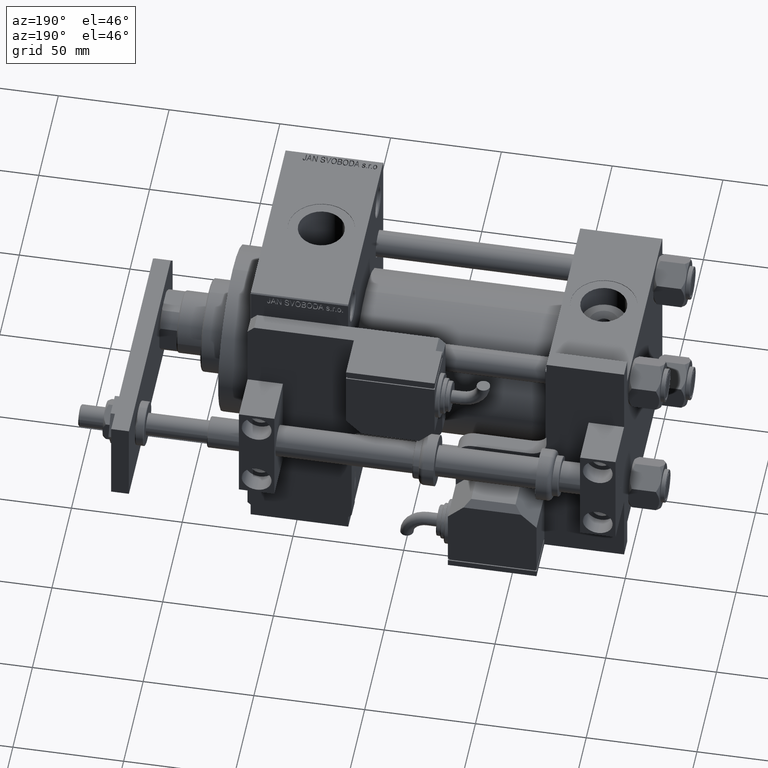
[diagram: clean part render]
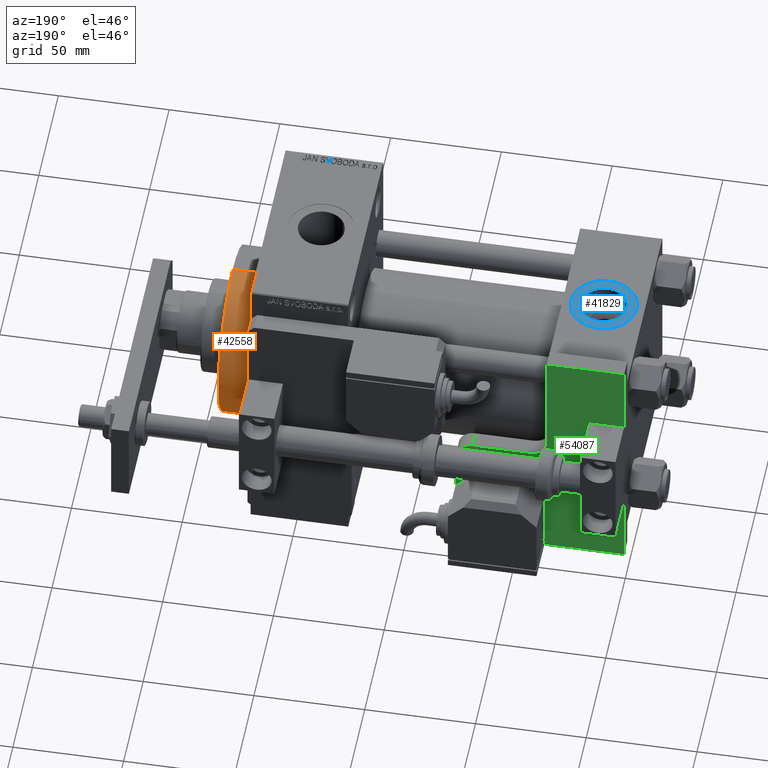
[diagram: same view with three faces highlighted in distinct colors, each labeled with its STEP entity id]
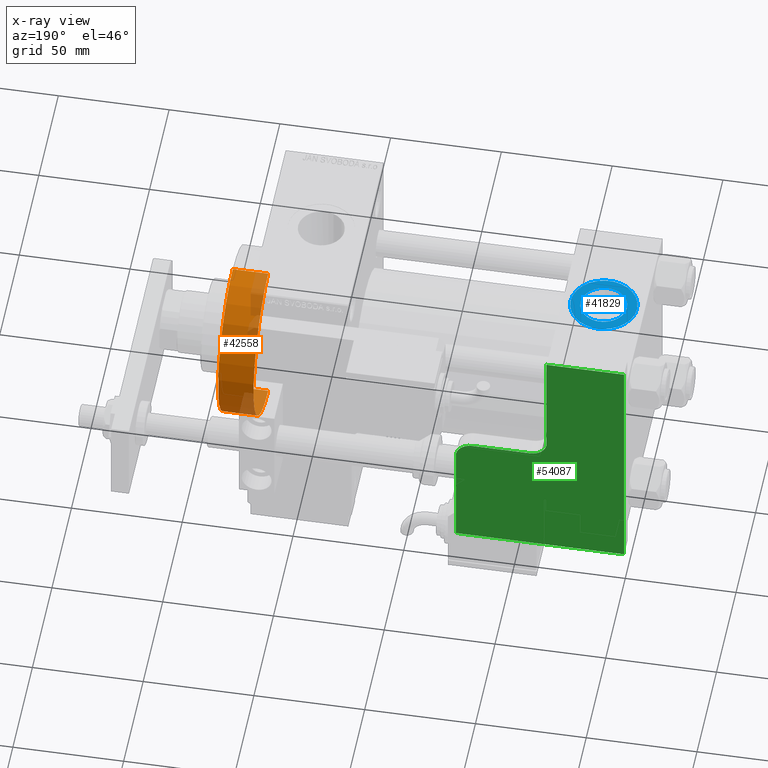
[diagram: x-ray of the same camera — body ghosted, the three highlighted faces saturated]
A machine part, auxiliary view with three faces highlighted in distinct colors.
The next image is the same camera in x-ray (body ghosted, the three faces saturated) — at least one of them is partly hidden behind the body in this view.
Their STEP definitions:

[orange] entity #42558 — the highlighted cylindrical surface (partial cylindrical patch) has radius 37.5 mm, axis along (-1, -0, -0).
#38 = VERTEX_POINT ( 'NONE', #51036 ) ;
#908 = VECTOR ( 'NONE', #51583, 1000.000000000000000 ) ;
#1409 = ORIENTED_EDGE ( 'NONE', *, *, #37046, .T. ) ;
#4534 = CIRCLE ( 'NONE', #40926, 37.50000000000000711 ) ;
#8864 = EDGE_LOOP ( 'NONE', ( #49452, #1409, #32739, #45656 ) ) ;
#10520 = DIRECTION ( 'NONE',  ( 0.000000000000000000, 0.000000000000000000, -1.000000000000000000 ) ) ;
#11749 = EDGE_CURVE ( 'NONE', #42644, #15237, #41975, .T. ) ;
#12002 = AXIS2_PLACEMENT_3D ( 'NONE', #16243, #41802, #33450 ) ;
#15237 = VERTEX_POINT ( 'NONE', #35250 ) ;
#16158 = DIRECTION ( 'NONE',  ( 1.000000000000000000, 0.000000000000000000, 0.000000000000000000 ) ) ;
#16243 = CARTESIAN_POINT ( 'NONE',  ( 186.0000000000000000, 0.000000000000000000, 0.000000000000000000 ) ) ;
#17105 = CARTESIAN_POINT ( 'NONE',  ( 186.0000000000000000, 0.000000000000000000, 37.50000000000000711 ) ) ;
#18003 = AXIS2_PLACEMENT_3D ( 'NONE', #40255, #19120, #10520 ) ;
#18847 = EDGE_CURVE ( 'NONE', #23174, #15237, #39045, .T. ) ;
#19120 = DIRECTION ( 'NONE',  ( 1.000000000000000000, 0.000000000000000000, 0.000000000000000000 ) ) ;
#19652 = EDGE_CURVE ( 'NONE', #38, #23174, #4534, .T. ) ;
#23174 = VERTEX_POINT ( 'NONE', #44809 ) ;
#28079 = VECTOR ( 'NONE', #34886, 1000.000000000000000 ) ;
#29554 = CARTESIAN_POINT ( 'NONE',  ( 169.9999999999999716, 4.592425496802575156E-15, -37.50000000000000711 ) ) ;
#30435 = CARTESIAN_POINT ( 'NONE',  ( 186.0000000000000000, 4.592425496802575156E-15, -37.50000000000000711 ) ) ;
#32739 = ORIENTED_EDGE ( 'NONE', *, *, #11749, .T. ) ;
#33095 = DIRECTION ( 'NONE',  ( 0.000000000000000000, 0.000000000000000000, -1.000000000000000000 ) ) ;
#33450 = DIRECTION ( 'NONE',  ( 0.000000000000000000, 0.000000000000000000, 1.000000000000000000 ) ) ;
#34886 = DIRECTION ( 'NONE',  ( -1.000000000000000000, -0.000000000000000000, -0.000000000000000000 ) ) ;
#35250 = CARTESIAN_POINT ( 'NONE',  ( 169.9999999999999716, 0.000000000000000000, 37.50000000000000711 ) ) ;
#37046 = EDGE_CURVE ( 'NONE', #38, #42644, #38514, .T. ) ;
#37076 = CYLINDRICAL_SURFACE ( 'NONE', #12002, 37.50000000000000711 ) ;
#38514 = LINE ( 'NONE', #30435, #28079 ) ;
#39045 = LINE ( 'NONE', #17105, #908 ) ;
#40255 = CARTESIAN_POINT ( 'NONE',  ( 169.9999999999999716, 0.000000000000000000, 0.000000000000000000 ) ) ;
#40926 = AXIS2_PLACEMENT_3D ( 'NONE', #54256, #16158, #33095 ) ;
#41802 = DIRECTION ( 'NONE',  ( -1.000000000000000000, -0.000000000000000000, -0.000000000000000000 ) ) ;
#41975 = CIRCLE ( 'NONE', #18003, 37.50000000000000711 ) ;
#42558 = ADVANCED_FACE ( 'NONE', ( #50721 ), #37076, .T. ) ;
#42644 = VERTEX_POINT ( 'NONE', #29554 ) ;
#44809 = CARTESIAN_POINT ( 'NONE',  ( 186.0000000000000000, 0.000000000000000000, 37.50000000000000711 ) ) ;
#45656 = ORIENTED_EDGE ( 'NONE', *, *, #18847, .F. ) ;
#49452 = ORIENTED_EDGE ( 'NONE', *, *, #19652, .F. ) ;
#50721 = FACE_OUTER_BOUND ( 'NONE', #8864, .T. ) ;
#51036 = CARTESIAN_POINT ( 'NONE',  ( 186.0000000000000000, 4.592425496802575156E-15, -37.50000000000000711 ) ) ;
#51583 = DIRECTION ( 'NONE',  ( -1.000000000000000000, -0.000000000000000000, -0.000000000000000000 ) ) ;
#54256 = CARTESIAN_POINT ( 'NONE',  ( 186.0000000000000000, 0.000000000000000000, 0.000000000000000000 ) ) ;

[blue] entity #41829 — the highlighted planar face has unit normal (0, 0, 1).
#383 = DIRECTION ( 'NONE',  ( 1.000000000000000000, 0.000000000000000000, 0.000000000000000000 ) ) ;
#539 = CIRCLE ( 'NONE', #45830, 15.00000000000000355 ) ;
#1101 = DIRECTION ( 'NONE',  ( 1.000000000000000000, 0.000000000000000000, -0.000000000000000000 ) ) ;
#1928 = DIRECTION ( 'NONE',  ( 0.000000000000000000, 0.000000000000000000, 1.000000000000000000 ) ) ;
#3263 = CARTESIAN_POINT ( 'NONE',  ( 8.019999999999999574, -1.085963448633122417E-14, 44.79999999999999716 ) ) ;
#3391 = ORIENTED_EDGE ( 'NONE', *, *, #34601, .T. ) ;
#3758 = CARTESIAN_POINT ( 'NONE',  ( 33.50000000000000000, -1.214306433183764966E-14, 44.79999999999999716 ) ) ;
#4760 = CARTESIAN_POINT ( 'NONE',  ( 18.50000000000000000, -1.214306433183764966E-14, 44.79999999999999716 ) ) ;
#5561 = PLANE ( 'NONE',  #54628 ) ;
#7053 = CARTESIAN_POINT ( 'NONE',  ( 3.499999999999997780, -1.030609413311661928E-14, 44.79999999999999716 ) ) ;
#8555 = EDGE_LOOP ( 'NONE', ( #43185, #32513 ) ) ;
#9554 = DIRECTION ( 'NONE',  ( 0.000000000000000000, 0.000000000000000000, 1.000000000000000000 ) ) ;
#10287 = FACE_OUTER_BOUND ( 'NONE', #42302, .T. ) ;
#13729 = DIRECTION ( 'NONE',  ( 0.000000000000000000, 0.000000000000000000, 1.000000000000000000 ) ) ;
#14098 = CIRCLE ( 'NONE', #35388, 10.48000000000000043 ) ;
#15133 = CARTESIAN_POINT ( 'NONE',  ( 18.50000000000000000, -1.214306433183764966E-14, 44.79999999999999716 ) ) ;
#16389 = VERTEX_POINT ( 'NONE', #3263 ) ;
#17536 = DIRECTION ( 'NONE',  ( 1.000000000000000000, 0.000000000000000000, 0.000000000000000000 ) ) ;
#18289 = VERTEX_POINT ( 'NONE', #7053 ) ;
#18769 = VERTEX_POINT ( 'NONE', #3758 ) ;
#19364 = AXIS2_PLACEMENT_3D ( 'NONE', #25953, #13729, #383 ) ;
#20860 = VERTEX_POINT ( 'NONE', #32107 ) ;
#21633 = AXIS2_PLACEMENT_3D ( 'NONE', #15133, #32066, #49062 ) ;
#25953 = CARTESIAN_POINT ( 'NONE',  ( 18.50000000000000000, -1.214306433183764966E-14, 44.79999999999999716 ) ) ;
#26069 = CIRCLE ( 'NONE', #21633, 10.48000000000000043 ) ;
#26493 = DIRECTION ( 'NONE',  ( 1.000000000000000000, 0.000000000000000000, 0.000000000000000000 ) ) ;
#28740 = EDGE_CURVE ( 'NONE', #16389, #20860, #26069, .T. ) ;
#32066 = DIRECTION ( 'NONE',  ( 0.000000000000000000, 0.000000000000000000, 1.000000000000000000 ) ) ;
#32107 = CARTESIAN_POINT ( 'NONE',  ( 28.98000000000000043, -1.214306433183764966E-14, 44.79999999999999716 ) ) ;
#32513 = ORIENTED_EDGE ( 'NONE', *, *, #28740, .F. ) ;
#34601 = EDGE_CURVE ( 'NONE', #18769, #18289, #539, .T. ) ;
#35308 = DIRECTION ( 'NONE',  ( 0.000000000000000000, 0.000000000000000000, 1.000000000000000000 ) ) ;
#35388 = AXIS2_PLACEMENT_3D ( 'NONE', #4760, #35308, #17536 ) ;
#41829 = ADVANCED_FACE ( 'NONE', ( #47268, #10287 ), #5561, .T. ) ;
#42302 = EDGE_LOOP ( 'NONE', ( #3391, #46621 ) ) ;
#43090 = CARTESIAN_POINT ( 'NONE',  ( 18.50000000000000000, -1.214306433183764966E-14, 44.79999999999999716 ) ) ;
#43185 = ORIENTED_EDGE ( 'NONE', *, *, #49748, .F. ) ;
#45830 = AXIS2_PLACEMENT_3D ( 'NONE', #47631, #9554, #26493 ) ;
#46621 = ORIENTED_EDGE ( 'NONE', *, *, #51669, .T. ) ;
#46865 = CIRCLE ( 'NONE', #19364, 15.00000000000000355 ) ;
#47268 = FACE_BOUND ( 'NONE', #8555, .T. ) ;
#47631 = CARTESIAN_POINT ( 'NONE',  ( 18.50000000000000000, -1.214306433183764966E-14, 44.79999999999999716 ) ) ;
#49062 = DIRECTION ( 'NONE',  ( 1.000000000000000000, 0.000000000000000000, 0.000000000000000000 ) ) ;
#49748 = EDGE_CURVE ( 'NONE', #20860, #16389, #14098, .T. ) ;
#51669 = EDGE_CURVE ( 'NONE', #18289, #18769, #46865, .T. ) ;
#54628 = AXIS2_PLACEMENT_3D ( 'NONE', #43090, #1928, #1101 ) ;

[green] entity #54087 — the highlighted planar face has unit normal (0, 1, 0).
#974 = VECTOR ( 'NONE', #41601, 1000.000000000000000 ) ;
#1243 = EDGE_CURVE ( 'NONE', #25940, #18028, #14173, .T. ) ;
#2040 = ORIENTED_EDGE ( 'NONE', *, *, #7724, .T. ) ;
#4074 = EDGE_LOOP ( 'NONE', ( #32456, #16146, #5058, #2040, #43050, #27246, #7776, #34974 ) ) ;
#5058 = ORIENTED_EDGE ( 'NONE', *, *, #9853, .T. ) ;
#5064 = CARTESIAN_POINT ( 'NONE',  ( -34.99999999999999289, 114.9999999999999716, 8.000000000000000000 ) ) ;
#5863 = CARTESIAN_POINT ( 'NONE',  ( 0.000000000000000000, 0.000000000000000000, 8.000000000000000000 ) ) ;
#5905 = EDGE_CURVE ( 'NONE', #48944, #45125, #50705, .T. ) ;
#7724 = EDGE_CURVE ( 'NONE', #10188, #53143, #24372, .T. ) ;
#7776 = ORIENTED_EDGE ( 'NONE', *, *, #53679, .T. ) ;
#7878 = DIRECTION ( 'NONE',  ( -1.000000000000000000, -1.189524669241239460E-15, 0.000000000000000000 ) ) ;
#9517 = DIRECTION ( 'NONE',  ( 0.000000000000000000, 0.000000000000000000, 1.000000000000000000 ) ) ;
#9853 = EDGE_CURVE ( 'NONE', #20095, #10188, #40334, .T. ) ;
#10188 = VERTEX_POINT ( 'NONE', #49463 ) ;
#11014 = EDGE_CURVE ( 'NONE', #17016, #20095, #31337, .T. ) ;
#11505 = AXIS2_PLACEMENT_3D ( 'NONE', #33646, #42271, #17251 ) ;
#14173 = CIRCLE ( 'NONE', #11505, 7.500000000000000000 ) ;
#14284 = DIRECTION ( 'NONE',  ( 0.000000000000000000, 0.000000000000000000, 1.000000000000000000 ) ) ;
#14832 = FACE_OUTER_BOUND ( 'NONE', #4074, .T. ) ;
#14935 = CARTESIAN_POINT ( 'NONE',  ( -76.00000000000005684, 49.50000000000008527, 8.000000000000000000 ) ) ;
#15384 = CARTESIAN_POINT ( 'NONE',  ( -68.50000000000005684, 57.00000000000008527, 8.000000000000000000 ) ) ;
#15961 = CARTESIAN_POINT ( 'NONE',  ( 0.000000000000000000, 115.0000000000000142, 8.000000000000000000 ) ) ;
#16146 = ORIENTED_EDGE ( 'NONE', *, *, #11014, .T. ) ;
#17016 = VERTEX_POINT ( 'NONE', #15384 ) ;
#17251 = DIRECTION ( 'NONE',  ( 1.000000000000000000, 0.000000000000000000, 0.000000000000000000 ) ) ;
#17298 = LINE ( 'NONE', #51232, #25913 ) ;
#18028 = VERTEX_POINT ( 'NONE', #51035 ) ;
#18393 = DIRECTION ( 'NONE',  ( 1.000000000000000000, 0.000000000000000000, 0.000000000000000000 ) ) ;
#20095 = VERTEX_POINT ( 'NONE', #14935 ) ;
#20743 = EDGE_CURVE ( 'NONE', #53143, #48944, #31835, .T. ) ;
#22045 = EDGE_CURVE ( 'NONE', #18028, #17016, #17298, .T. ) ;
#22621 = CARTESIAN_POINT ( 'NONE',  ( 0.000000000000000000, 0.000000000000000000, 8.000000000000000000 ) ) ;
#24052 = CARTESIAN_POINT ( 'NONE',  ( 0.000000000000000000, 0.000000000000000000, 8.000000000000000000 ) ) ;
#24372 = LINE ( 'NONE', #33523, #974 ) ;
#25222 = LINE ( 'NONE', #54984, #36312 ) ;
#25913 = VECTOR ( 'NONE', #42871, 1000.000000000000000 ) ;
#25940 = VERTEX_POINT ( 'NONE', #52573 ) ;
#27246 = ORIENTED_EDGE ( 'NONE', *, *, #5905, .T. ) ;
#28365 = DIRECTION ( 'NONE',  ( 2.434699615406041273E-16, -1.000000000000000000, 0.000000000000000000 ) ) ;
#28673 = AXIS2_PLACEMENT_3D ( 'NONE', #47594, #9517, #18393 ) ;
#28987 = CARTESIAN_POINT ( 'NONE',  ( 0.000000000000000000, 115.0000000000000142, 8.000000000000000000 ) ) ;
#31053 = VECTOR ( 'NONE', #7878, 1000.000000000000000 ) ;
#31337 = CIRCLE ( 'NONE', #28673, 7.500000000000000000 ) ;
#31835 = LINE ( 'NONE', #24052, #36519 ) ;
#32259 = CARTESIAN_POINT ( 'NONE',  ( -76.00000000000005684, 57.00000000000008527, 8.000000000000000000 ) ) ;
#32456 = ORIENTED_EDGE ( 'NONE', *, *, #22045, .T. ) ;
#32723 = DIRECTION ( 'NONE',  ( 2.392722035830083409E-16, -1.000000000000000000, 0.000000000000000000 ) ) ;
#33523 = CARTESIAN_POINT ( 'NONE',  ( -76.00000000000004263, 0.000000000000000000, 8.000000000000000000 ) ) ;
#33646 = CARTESIAN_POINT ( 'NONE',  ( -42.49999999999997868, 64.50000000000008527, 8.000000000000000000 ) ) ;
#34974 = ORIENTED_EDGE ( 'NONE', *, *, #1243, .T. ) ;
#35396 = PLANE ( 'NONE',  #41625 ) ;
#36293 = DIRECTION ( 'NONE',  ( 0.000000000000000000, 1.000000000000000000, 0.000000000000000000 ) ) ;
#36312 = VECTOR ( 'NONE', #32723, 1000.000000000000000 ) ;
#36519 = VECTOR ( 'NONE', #36293, 1000.000000000000000 ) ;
#40334 = LINE ( 'NONE', #32259, #42774 ) ;
#41601 = DIRECTION ( 'NONE',  ( 1.000000000000000000, 0.000000000000000000, 0.000000000000000000 ) ) ;
#41625 = AXIS2_PLACEMENT_3D ( 'NONE', #22621, #14284, #44018 ) ;
#42271 = DIRECTION ( 'NONE',  ( -0.000000000000000000, -0.000000000000000000, -1.000000000000000000 ) ) ;
#42774 = VECTOR ( 'NONE', #28365, 1000.000000000000000 ) ;
#42871 = DIRECTION ( 'NONE',  ( -1.000000000000000000, -1.692413147294442765E-16, 0.000000000000000000 ) ) ;
#43050 = ORIENTED_EDGE ( 'NONE', *, *, #20743, .T. ) ;
#44018 = DIRECTION ( 'NONE',  ( 1.000000000000000000, 0.000000000000000000, -0.000000000000000000 ) ) ;
#45125 = VERTEX_POINT ( 'NONE', #5064 ) ;
#47594 = CARTESIAN_POINT ( 'NONE',  ( -68.50000000000005684, 49.50000000000008527, 8.000000000000000000 ) ) ;
#48944 = VERTEX_POINT ( 'NONE', #15961 ) ;
#49463 = CARTESIAN_POINT ( 'NONE',  ( -76.00000000000004263, 0.000000000000000000, 8.000000000000000000 ) ) ;
#50705 = LINE ( 'NONE', #28987, #31053 ) ;
#51035 = CARTESIAN_POINT ( 'NONE',  ( -42.49999999999997868, 57.00000000000009237, 8.000000000000000000 ) ) ;
#51232 = CARTESIAN_POINT ( 'NONE',  ( -34.99999999999997868, 57.00000000000009237, 8.000000000000000000 ) ) ;
#52573 = CARTESIAN_POINT ( 'NONE',  ( -34.99999999999997868, 64.50000000000008527, 8.000000000000000000 ) ) ;
#53143 = VERTEX_POINT ( 'NONE', #5863 ) ;
#53679 = EDGE_CURVE ( 'NONE', #45125, #25940, #25222, .T. ) ;
#54087 = ADVANCED_FACE ( 'NONE', ( #14832 ), #35396, .T. ) ;
#54984 = CARTESIAN_POINT ( 'NONE',  ( -34.99999999999999289, 114.9999999999999716, 8.000000000000000000 ) ) ;